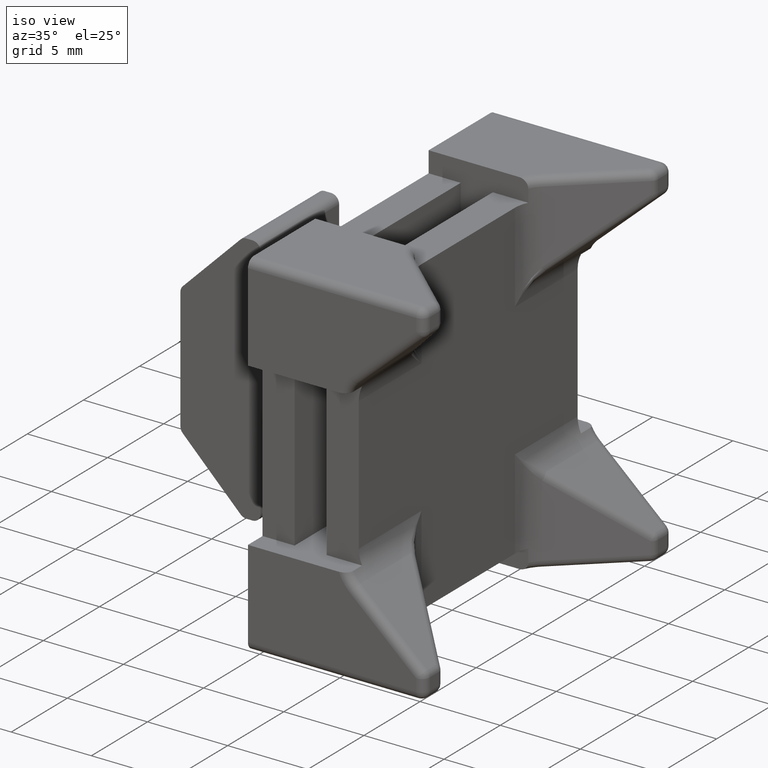
[diagram: clean part render]
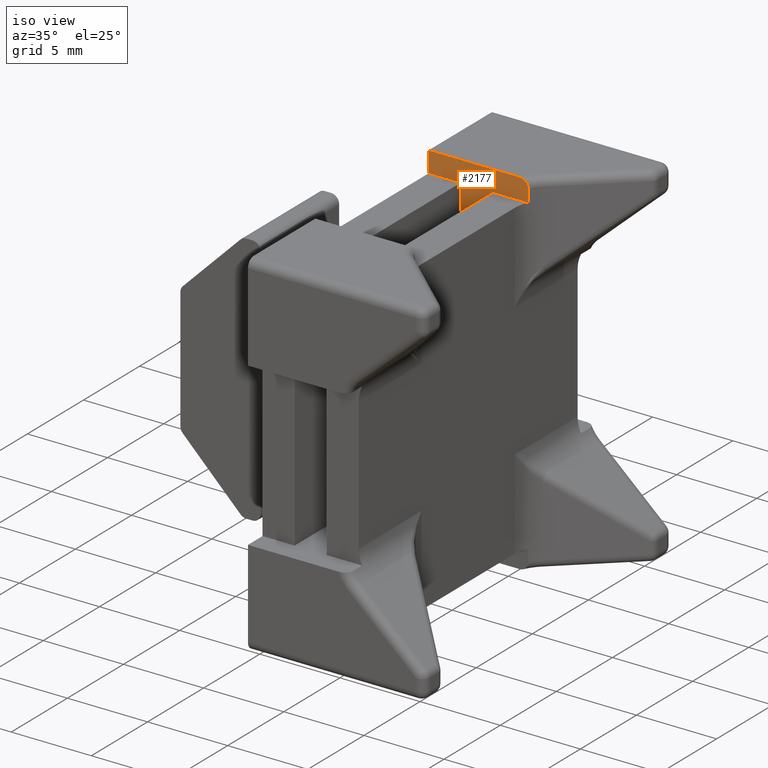
[diagram: same view with one face highlighted and labeled with its STEP entity id]
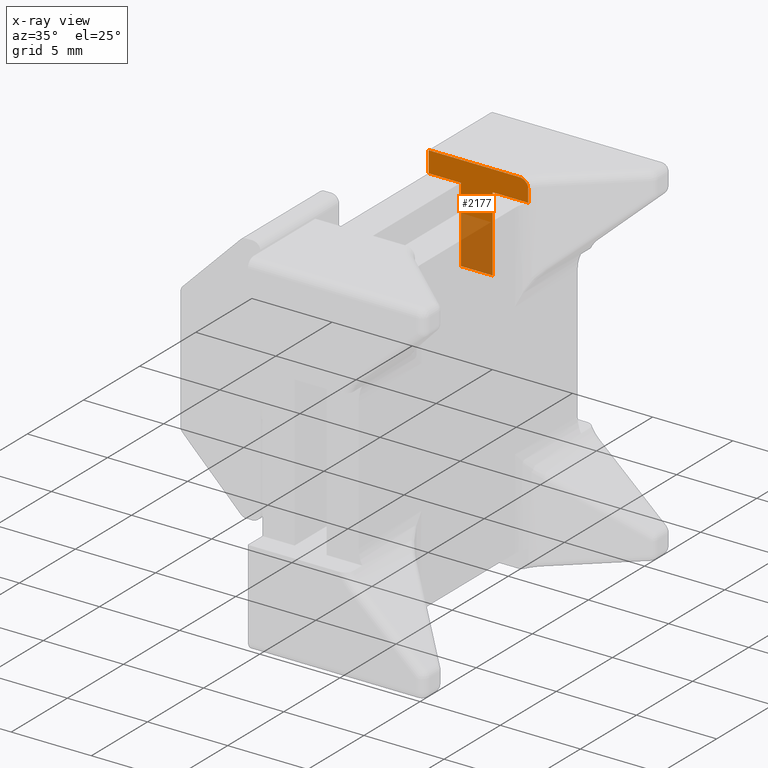
[diagram: x-ray of the same camera — body ghosted, the highlighted face saturated]
A machine part, iso view. The second image highlights one B-rep face of the part: STEP entity #2177.
The next image is the same camera in x-ray: the body ghosted, the highlighted face saturated — about 32% of this face is hidden behind the body in this view.
In plain terms, the highlighted planar face has unit normal (0, 1, 0).
Its self-contained STEP definition (entity closure, byte-faithful):
#45=PLANE('',#2421);
#82=B_SPLINE_CURVE_WITH_KNOTS('',3,(#3396,#3397,#3398,#3399,#3400,#3401,
#3402,#3403,#3404,#3405),.UNSPECIFIED.,.F.,.F.,(4,2,2,2,4),(0.0762535447619462,
0.0966465546208057,0.116623136981459,0.13561377765965,0.153560442282937),
 .UNSPECIFIED.);
#116=LINE('',#3269,#318);
#163=LINE('',#3456,#365);
#232=LINE('',#3766,#434);
#246=LINE('',#3796,#448);
#254=LINE('',#3811,#456);
#255=LINE('',#3813,#457);
#256=LINE('',#3814,#458);
#257=LINE('',#3815,#459);
#318=VECTOR('',#2564,10.);
#365=VECTOR('',#2701,10.);
#434=VECTOR('',#2956,10.);
#448=VECTOR('',#2990,10.);
#456=VECTOR('',#3010,10.);
#457=VECTOR('',#3011,10.);
#458=VECTOR('',#3012,10.);
#459=VECTOR('',#3013,10.);
#644=FACE_OUTER_BOUND('',#772,.T.);
#772=EDGE_LOOP('',(#1892,#1893,#1894,#1895,#1896,#1897,#1898,#1899,#1900));
#934=VERTEX_POINT('',#3266);
#935=VERTEX_POINT('',#3268);
#980=VERTEX_POINT('',#3394);
#981=VERTEX_POINT('',#3395);
#989=VERTEX_POINT('',#3453);
#990=VERTEX_POINT('',#3455);
#1058=VERTEX_POINT('',#3765);
#1064=VERTEX_POINT('',#3794);
#1066=VERTEX_POINT('',#3812);
#1143=EDGE_CURVE('',#934,#935,#116,.T.);
#1201=EDGE_CURVE('',#980,#981,#82,.T.);
#1218=EDGE_CURVE('',#990,#989,#163,.T.);
#1338=EDGE_CURVE('',#1058,#981,#232,.F.);
#1355=EDGE_CURVE('',#1064,#989,#246,.T.);
#1363=EDGE_CURVE('',#935,#980,#254,.T.);
#1364=EDGE_CURVE('',#1066,#934,#255,.T.);
#1365=EDGE_CURVE('',#990,#1066,#256,.T.);
#1366=EDGE_CURVE('',#1058,#1064,#257,.T.);
#1892=ORIENTED_EDGE('',*,*,#1201,.F.);
#1893=ORIENTED_EDGE('',*,*,#1363,.F.);
#1894=ORIENTED_EDGE('',*,*,#1143,.F.);
#1895=ORIENTED_EDGE('',*,*,#1364,.F.);
#1896=ORIENTED_EDGE('',*,*,#1365,.F.);
#1897=ORIENTED_EDGE('',*,*,#1218,.T.);
#1898=ORIENTED_EDGE('',*,*,#1355,.F.);
#1899=ORIENTED_EDGE('',*,*,#1366,.F.);
#1900=ORIENTED_EDGE('',*,*,#1338,.T.);
#2177=ADVANCED_FACE('',(#644),#45,.F.);
#2421=AXIS2_PLACEMENT_3D('',#3810,#3008,#3009);
#2564=DIRECTION('',(0.,0.,1.));
#2701=DIRECTION('',(1.,0.,0.));
#2956=DIRECTION('',(5.69345140833414E-17,5.12410626750073E-17,-1.));
#2990=DIRECTION('',(0.,0.,-1.));
#3008=DIRECTION('center_axis',(0.,1.,0.));
#3009=DIRECTION('ref_axis',(-5.69345140833414E-17,0.,1.));
#3010=DIRECTION('',(1.,0.,0.));
#3011=DIRECTION('',(-1.,0.,0.));
#3012=DIRECTION('',(0.,0.,1.));
#3013=DIRECTION('',(-1.,0.,0.));
#3266=CARTESIAN_POINT('',(0.,5.05,19.5));
#3268=CARTESIAN_POINT('',(0.,5.05,20.8));
#3269=CARTESIAN_POINT('',(0.,5.05,19.3));
#3394=CARTESIAN_POINT('',(5.66406136341447,5.05,20.8));
#3395=CARTESIAN_POINT('',(6.20929921151157,5.05,20.3));
#3396=CARTESIAN_POINT('Ctrl Pts',(5.66406136341447,5.05,20.8));
#3397=CARTESIAN_POINT('Ctrl Pts',(5.732038062944,5.05,20.8));
#3398=CARTESIAN_POINT('Ctrl Pts',(5.81217491304377,5.05,20.7847657335672));
#3399=CARTESIAN_POINT('Ctrl Pts',(5.93739040171332,5.05,20.7354818279543));
#3400=CARTESIAN_POINT('Ctrl Pts',(6.00514370971155,5.05,20.6931201620252));
#3401=CARTESIAN_POINT('Ctrl Pts',(6.09975023349584,5.05,20.604118977231));
#3402=CARTESIAN_POINT('Ctrl Pts',(6.14429489734625,5.05,20.5425878155619));
#3403=CARTESIAN_POINT('Ctrl Pts',(6.19407730661428,5.05,20.4299764593945));
#3404=CARTESIAN_POINT('Ctrl Pts',(6.20929921151157,5.05,20.359822215411));
#3405=CARTESIAN_POINT('Ctrl Pts',(6.20929921151157,5.05,20.3));
#3453=CARTESIAN_POINT('',(4.,5.05,14.8));
#3455=CARTESIAN_POINT('',(2.,5.05,14.8));
#3456=CARTESIAN_POINT('',(6.,5.05,14.8));
#3765=CARTESIAN_POINT('',(6.20929921151157,5.05,19.5));
#3766=CARTESIAN_POINT('',(6.20929921151157,5.05,17.9));
#3794=CARTESIAN_POINT('',(4.,5.05,19.5));
#3796=CARTESIAN_POINT('',(4.,5.05,7.40000000000001));
#3810=CARTESIAN_POINT('Origin',(6.,5.05,14.8));
#3811=CARTESIAN_POINT('',(6.,5.05,20.8));
#3812=CARTESIAN_POINT('',(2.,5.05,19.5));
#3813=CARTESIAN_POINT('',(3.,5.05,19.5));
#3814=CARTESIAN_POINT('',(2.,5.05,17.15));
#3815=CARTESIAN_POINT('',(5.,5.05,19.5));